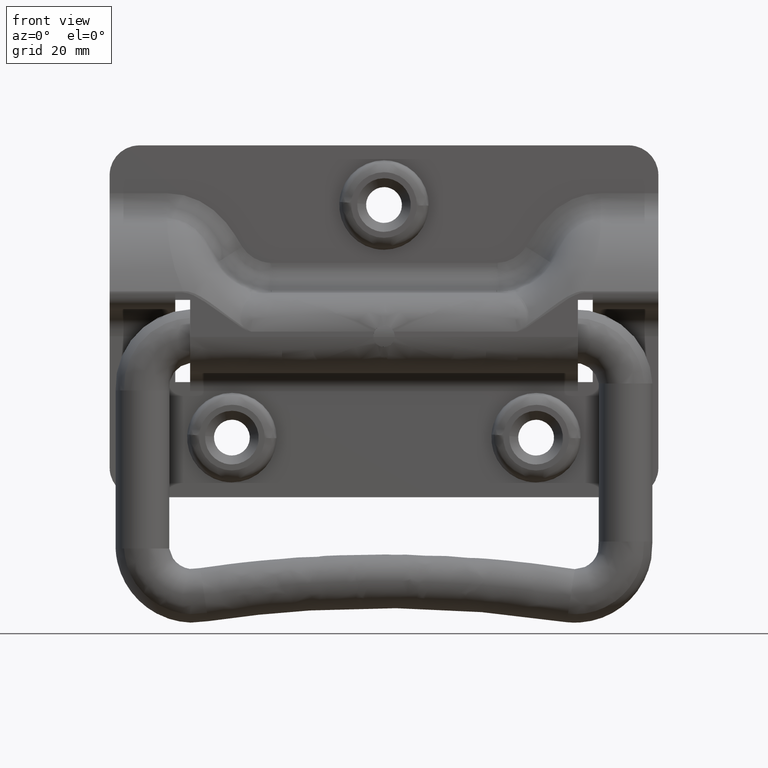
[diagram: clean part render]
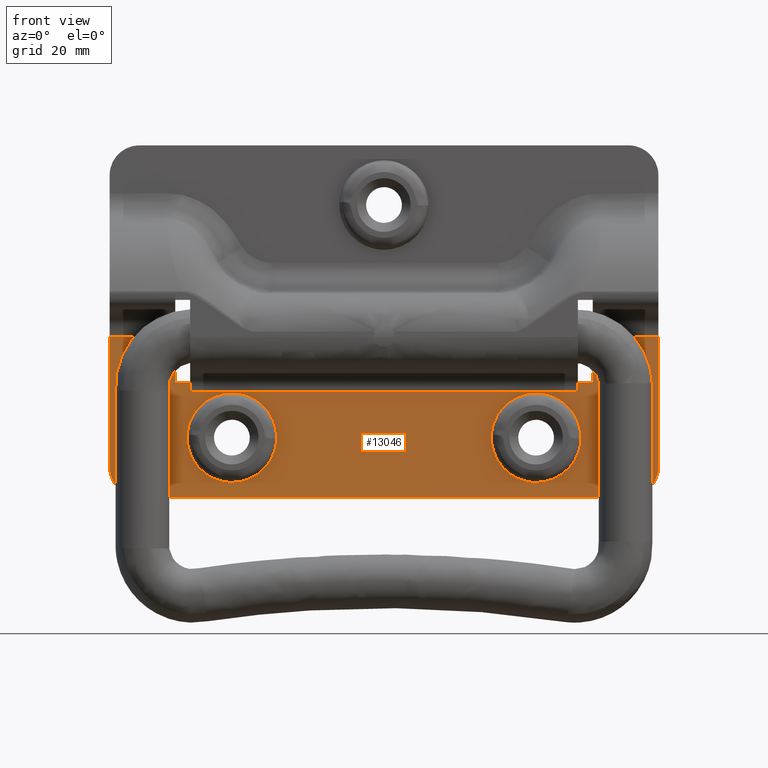
[diagram: same view with one face highlighted and labeled with its STEP entity id]
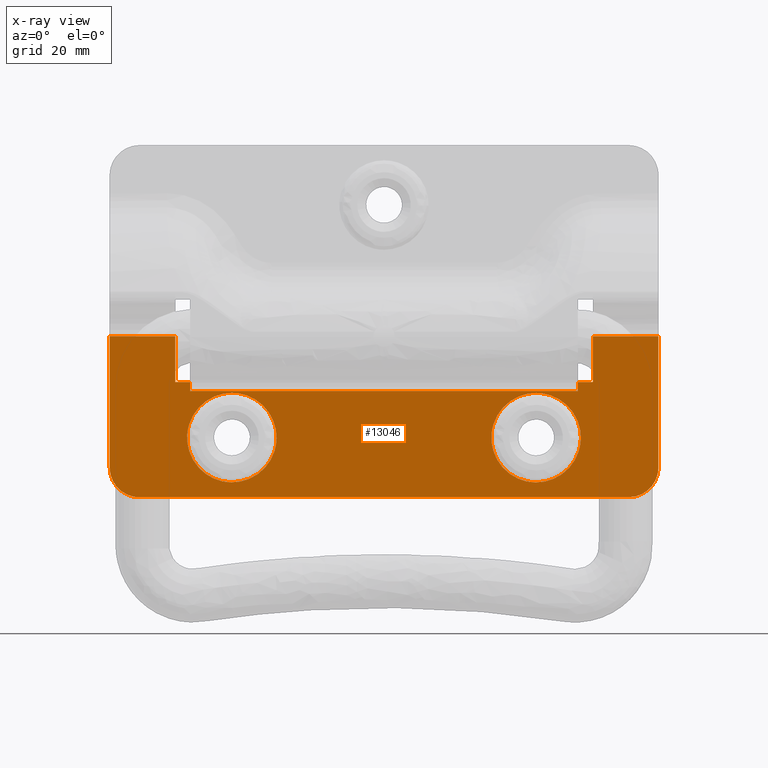
[diagram: x-ray of the same camera — body ghosted, the highlighted face saturated]
A machine part, front view. The second image highlights one B-rep face of the part: STEP entity #13046.
The next image is the same camera in x-ray: the body ghosted, the highlighted face saturated — about 0% of this face is hidden behind the body in this view.
In plain terms, the highlighted face is a freeform B-spline surface patch.
Its self-contained STEP definition (entity closure, byte-faithful):
#5270=CARTESIAN_POINT('',(-32.981742553797730,4.499999999296268,-16.468363613105261));
#5271=VERTEX_POINT('',#5270);
#5285=CARTESIAN_POINT('',(-25.500000000000000,4.500000000000090,-24.491362999999900));
#5286=VERTEX_POINT('',#5285);
#5287=CARTESIAN_POINT('',(-32.981742553797730,4.499999999296268,-16.468363613105261));
#5288=CARTESIAN_POINT('',(-33.0,4.500000000000091,-16.729544630860449));
#5289=CARTESIAN_POINT('',(-33.0,4.500000000000090,-16.991362999999900));
#5290=CARTESIAN_POINT('',(-33.0,4.500000000000090,-24.491362999999907));
#5291=CARTESIAN_POINT('',(-25.500000000000000,4.500000000000090,-24.491362999999900));
#5299=(BOUNDED_CURVE()B_SPLINE_CURVE(2,(#5287,#5288,#5289,#5290,#5291),.UNSPECIFIED.,.F.,.U.)B_SPLINE_CURVE_WITH_KNOTS((3,2,3),(0.737833686531511,0.750000000000000,1.0),.UNSPECIFIED.)CURVE()GEOMETRIC_REPRESENTATION_ITEM()RATIONAL_B_SPLINE_CURVE((0.972879876379402,0.985746277148483,1.0,0.707106781186547,1.0))REPRESENTATION_ITEM(''));
#5300=EDGE_CURVE('',#5271,#5286,#5299,.T.);
#5302=CARTESIAN_POINT('',(-18.000592168472000,4.499999999289219,-17.085608299174250));
#5303=VERTEX_POINT('',#5302);
#5304=CARTESIAN_POINT('',(-25.500000000000000,4.500000000000090,-24.491362999999900));
#5305=CARTESIAN_POINT('',(-18.093660525792345,4.500000000000090,-24.491362999999907));
#5306=CARTESIAN_POINT('',(-18.000592168471993,4.499999999289219,-17.085608299174254));
#5314=(BOUNDED_CURVE()B_SPLINE_CURVE(2,(#5304,#5305,#5306),.UNSPECIFIED.,.F.,.U.)B_SPLINE_CURVE_WITH_KNOTS((3,3),(0.0,0.247784295919420),.UNSPECIFIED.)CURVE()GEOMETRIC_REPRESENTATION_ITEM()RATIONAL_B_SPLINE_CURVE((1.0,0.709702639986944,0.994854295638700))REPRESENTATION_ITEM(''));
#5315=EDGE_CURVE('',#5286,#5303,#5314,.T.);
#5402=CARTESIAN_POINT('',(-25.500000000000000,4.500000000000090,-9.491362999999902));
#5403=VERTEX_POINT('',#5402);
#5404=CARTESIAN_POINT('',(-18.000592168471997,4.499999999289219,-17.085608299174257));
#5405=CARTESIAN_POINT('',(-17.999999999999996,4.500000000000090,-17.038487509988290));
#5406=CARTESIAN_POINT('',(-18.0,4.500000000000090,-16.991362999999900));
#5407=CARTESIAN_POINT('',(-18.000000000000007,4.500000000000090,-9.491362999999902));
#5408=CARTESIAN_POINT('',(-25.500000000000000,4.500000000000090,-9.491362999999902));
#5416=(BOUNDED_CURVE()B_SPLINE_CURVE(2,(#5404,#5405,#5406,#5407,#5408),.UNSPECIFIED.,.F.,.U.)B_SPLINE_CURVE_WITH_KNOTS((3,2,3),(0.247784295919420,0.250000000000000,0.500000000000000),.UNSPECIFIED.)CURVE()GEOMETRIC_REPRESENTATION_ITEM()RATIONAL_B_SPLINE_CURVE((0.994854295638700,0.997404141199604,1.0,0.707106781186547,1.0))REPRESENTATION_ITEM(''));
#5417=EDGE_CURVE('',#5303,#5403,#5416,.T.);
#5419=CARTESIAN_POINT('',(-25.500000000000000,4.500000000000090,-9.491362999999902));
#5420=CARTESIAN_POINT('',(-32.494026354351888,4.500000000000090,-9.491362999999902));
#5421=CARTESIAN_POINT('',(-32.981742553797723,4.499999999296268,-16.468363613105257));
#5429=(BOUNDED_CURVE()B_SPLINE_CURVE(2,(#5419,#5420,#5421),.UNSPECIFIED.,.F.,.U.)B_SPLINE_CURVE_WITH_KNOTS((3,3),(0.500000000000000,0.737833686531510),.UNSPECIFIED.)CURVE()GEOMETRIC_REPRESENTATION_ITEM()RATIONAL_B_SPLINE_CURVE((1.0,0.721360504038065,0.972879876379400))REPRESENTATION_ITEM(''));
#5430=EDGE_CURVE('',#5403,#5271,#5429,.T.);
#5700=CARTESIAN_POINT('',(18.018257446202270,4.499999999296268,-16.477000613105361));
#5701=VERTEX_POINT('',#5700);
#5715=CARTESIAN_POINT('',(25.500000000000000,4.500000000000090,-24.500000000000000));
#5716=VERTEX_POINT('',#5715);
#5717=CARTESIAN_POINT('',(18.018257446202274,4.499999999296268,-16.477000613105364));
#5718=CARTESIAN_POINT('',(17.999999999999996,4.500000000000091,-16.738181630860559));
#5719=CARTESIAN_POINT('',(18.0,4.500000000000090,-17.0));
#5720=CARTESIAN_POINT('',(18.000000000000007,4.500000000000090,-24.499999999999993));
#5721=CARTESIAN_POINT('',(25.500000000000000,4.500000000000090,-24.500000000000000));
#5729=(BOUNDED_CURVE()B_SPLINE_CURVE(2,(#5717,#5718,#5719,#5720,#5721),.UNSPECIFIED.,.F.,.U.)B_SPLINE_CURVE_WITH_KNOTS((3,2,3),(0.737833686531511,0.750000000000000,1.0),.UNSPECIFIED.)CURVE()GEOMETRIC_REPRESENTATION_ITEM()RATIONAL_B_SPLINE_CURVE((0.972879876379402,0.985746277148483,1.0,0.707106781186547,1.0))REPRESENTATION_ITEM(''));
#5730=EDGE_CURVE('',#5701,#5716,#5729,.T.);
#5732=CARTESIAN_POINT('',(32.999407831528003,4.499999999289219,-17.094245299174361));
#5733=VERTEX_POINT('',#5732);
#5734=CARTESIAN_POINT('',(25.500000000000000,4.500000000000090,-24.500000000000000));
#5735=CARTESIAN_POINT('',(32.906339474207648,4.500000000000089,-24.499999999999996));
#5736=CARTESIAN_POINT('',(32.999407831528011,4.499999999289219,-17.094245299174357));
#5744=(BOUNDED_CURVE()B_SPLINE_CURVE(2,(#5734,#5735,#5736),.UNSPECIFIED.,.F.,.U.)B_SPLINE_CURVE_WITH_KNOTS((3,3),(0.0,0.247784295919420),.UNSPECIFIED.)CURVE()GEOMETRIC_REPRESENTATION_ITEM()RATIONAL_B_SPLINE_CURVE((1.0,0.709702639986944,0.994854295638700))REPRESENTATION_ITEM(''));
#5745=EDGE_CURVE('',#5716,#5733,#5744,.T.);
#5832=CARTESIAN_POINT('',(25.500000000000000,4.500000000000090,-9.500000000000002));
#5833=VERTEX_POINT('',#5832);
#5834=CARTESIAN_POINT('',(32.999407831528011,4.499999999289219,-17.094245299174357));
#5835=CARTESIAN_POINT('',(33.000000000000014,4.500000000000090,-17.047124509988389));
#5836=CARTESIAN_POINT('',(33.0,4.500000000000090,-17.0));
#5837=CARTESIAN_POINT('',(33.0,4.500000000000090,-9.500000000000002));
#5838=CARTESIAN_POINT('',(25.500000000000000,4.500000000000090,-9.500000000000002));
#5846=(BOUNDED_CURVE()B_SPLINE_CURVE(2,(#5834,#5835,#5836,#5837,#5838),.UNSPECIFIED.,.F.,.U.)B_SPLINE_CURVE_WITH_KNOTS((3,2,3),(0.247784295919420,0.250000000000000,0.500000000000000),.UNSPECIFIED.)CURVE()GEOMETRIC_REPRESENTATION_ITEM()RATIONAL_B_SPLINE_CURVE((0.994854295638700,0.997404141199603,1.0,0.707106781186547,1.0))REPRESENTATION_ITEM(''));
#5847=EDGE_CURVE('',#5733,#5833,#5846,.T.);
#5849=CARTESIAN_POINT('',(25.500000000000000,4.500000000000090,-9.500000000000002));
#5850=CARTESIAN_POINT('',(18.505973645648119,4.500000000000090,-9.500000000000002));
#5851=CARTESIAN_POINT('',(18.018257446202274,4.499999999296268,-16.477000613105361));
#5859=(BOUNDED_CURVE()B_SPLINE_CURVE(2,(#5849,#5850,#5851),.UNSPECIFIED.,.F.,.U.)B_SPLINE_CURVE_WITH_KNOTS((3,3),(0.500000000000000,0.737833686531510),.UNSPECIFIED.)CURVE()GEOMETRIC_REPRESENTATION_ITEM()RATIONAL_B_SPLINE_CURVE((1.0,0.721360504038065,0.972879876379400))REPRESENTATION_ITEM(''));
#5860=EDGE_CURVE('',#5833,#5701,#5859,.T.);
#6692=CARTESIAN_POINT('',(46.0,4.500000000000090,-22.0));
#6693=VERTEX_POINT('',#6692);
#6699=CARTESIAN_POINT('',(41.0,4.500000000000090,-27.0));
#6700=VERTEX_POINT('',#6699);
#6701=CARTESIAN_POINT('',(41.0,4.500000000000090,-27.0));
#6702=CARTESIAN_POINT('',(46.000000000000007,4.500000000000089,-27.000000000000011));
#6703=CARTESIAN_POINT('',(46.0,4.500000000000090,-22.0));
#6711=(BOUNDED_CURVE()B_SPLINE_CURVE(2,(#6701,#6702,#6703),.UNSPECIFIED.,.F.,.U.)CURVE()GEOMETRIC_REPRESENTATION_ITEM()QUASI_UNIFORM_CURVE()RATIONAL_B_SPLINE_CURVE((1.0,0.707106781186548,1.0))REPRESENTATION_ITEM(''));
#6712=EDGE_CURVE('',#6700,#6693,#6711,.T.);
#6875=CARTESIAN_POINT('',(-41.0,4.500000000000090,-27.0));
#6876=VERTEX_POINT('',#6875);
#6882=CARTESIAN_POINT('',(-46.0,4.500000000000090,-22.0));
#6883=VERTEX_POINT('',#6882);
#6884=CARTESIAN_POINT('',(-46.0,4.500000000000090,-22.0));
#6885=CARTESIAN_POINT('',(-46.000000000000007,4.500000000000089,-27.000000000000011));
#6886=CARTESIAN_POINT('',(-41.0,4.500000000000090,-27.0));
#6894=(BOUNDED_CURVE()B_SPLINE_CURVE(2,(#6884,#6885,#6886),.UNSPECIFIED.,.F.,.U.)CURVE()GEOMETRIC_REPRESENTATION_ITEM()QUASI_UNIFORM_CURVE()RATIONAL_B_SPLINE_CURVE((1.0,0.707106781186548,1.0))REPRESENTATION_ITEM(''));
#6895=EDGE_CURVE('',#6883,#6876,#6894,.T.);
#11611=CARTESIAN_POINT('',(-32.500000000000000,4.500000000000060,-7.700000000000000));
#11612=VERTEX_POINT('',#11611);
#11634=CARTESIAN_POINT('',(-35.0,4.500000000000060,-7.700000000000000));
#11635=VERTEX_POINT('',#11634);
#11641=CARTESIAN_POINT('',(-32.500000000000000,4.500000000000060,-7.700000000000000));
#11642=CARTESIAN_POINT('',(-35.0,4.500000000000060,-7.700000000000000));
#11643=QUASI_UNIFORM_CURVE('',1,(#11641,#11642),.UNSPECIFIED.,.F.,.U.);
#11644=EDGE_CURVE('',#11612,#11635,#11643,.T.);
#11695=CARTESIAN_POINT('',(-35.0,4.500000000000000,0.0));
#11696=VERTEX_POINT('',#11695);
#11710=CARTESIAN_POINT('',(-35.0,4.500000000000060,-7.700000000000000));
#11711=CARTESIAN_POINT('',(-35.0,4.500000000000000,0.0));
#11712=QUASI_UNIFORM_CURVE('',1,(#11710,#11711),.UNSPECIFIED.,.F.,.U.);
#11713=EDGE_CURVE('',#11635,#11696,#11712,.T.);
#11766=CARTESIAN_POINT('',(35.0,4.500000000000060,-7.700000000000000));
#11767=VERTEX_POINT('',#11766);
#11789=CARTESIAN_POINT('',(32.500000000000000,4.500000000000060,-7.700000000000000));
#11790=VERTEX_POINT('',#11789);
#11796=CARTESIAN_POINT('',(35.0,4.500000000000060,-7.700000000000000));
#11797=CARTESIAN_POINT('',(32.500000000000000,4.500000000000060,-7.700000000000000));
#11798=QUASI_UNIFORM_CURVE('',1,(#11796,#11797),.UNSPECIFIED.,.F.,.U.);
#11799=EDGE_CURVE('',#11767,#11790,#11798,.T.);
#11886=CARTESIAN_POINT('',(35.0,4.500000000000000,0.0));
#11887=VERTEX_POINT('',#11886);
#11888=CARTESIAN_POINT('',(35.0,4.500000000000000,0.0));
#11889=CARTESIAN_POINT('',(35.0,4.500000000000060,-7.700000000000000));
#11890=QUASI_UNIFORM_CURVE('',1,(#11888,#11889),.UNSPECIFIED.,.F.,.U.);
#11891=EDGE_CURVE('',#11887,#11767,#11890,.T.);
#12036=CARTESIAN_POINT('',(-32.500000000000000,4.500000000000090,-9.199999999999902));
#12037=VERTEX_POINT('',#12036);
#12053=CARTESIAN_POINT('',(32.500000000000000,4.500000000000090,-9.199999999999902));
#12054=VERTEX_POINT('',#12053);
#12055=CARTESIAN_POINT('',(32.500000000000000,4.500000000000090,-9.199999999999902));
#12056=CARTESIAN_POINT('',(-32.500000000000000,4.500000000000090,-9.199999999999902));
#12057=QUASI_UNIFORM_CURVE('',1,(#12055,#12056),.UNSPECIFIED.,.F.,.U.);
#12058=EDGE_CURVE('',#12054,#12037,#12057,.T.);
#12116=CARTESIAN_POINT('',(41.0,4.500000000000090,-27.0));
#12117=CARTESIAN_POINT('',(-41.0,4.500000000000090,-27.0));
#12118=QUASI_UNIFORM_CURVE('',1,(#12116,#12117),.UNSPECIFIED.,.F.,.U.);
#12119=EDGE_CURVE('',#6700,#6876,#12118,.T.);
#12228=CARTESIAN_POINT('',(-32.500000000000000,4.500000000000090,-9.199999999999902));
#12229=CARTESIAN_POINT('',(-32.500000000000000,4.500000000000060,-7.700000000000000));
#12230=QUASI_UNIFORM_CURVE('',1,(#12228,#12229),.UNSPECIFIED.,.F.,.U.);
#12231=EDGE_CURVE('',#12037,#11612,#12230,.T.);
#12296=CARTESIAN_POINT('',(32.500000000000000,4.500000000000090,-9.199999999999902));
#12297=CARTESIAN_POINT('',(32.500000000000000,4.500000000000060,-7.700000000000000));
#12298=QUASI_UNIFORM_CURVE('',1,(#12296,#12297),.UNSPECIFIED.,.F.,.U.);
#12299=EDGE_CURVE('',#12054,#11790,#12298,.T.);
#12366=CARTESIAN_POINT('',(46.0,4.500000000000000,0.0));
#12367=VERTEX_POINT('',#12366);
#12381=CARTESIAN_POINT('',(46.0,4.500000000000090,-22.0));
#12382=CARTESIAN_POINT('',(46.0,4.500000000000000,0.0));
#12383=QUASI_UNIFORM_CURVE('',1,(#12381,#12382),.UNSPECIFIED.,.F.,.U.);
#12384=EDGE_CURVE('',#6693,#12367,#12383,.T.);
#12433=CARTESIAN_POINT('',(-46.0,4.500000000000000,0.0));
#12434=VERTEX_POINT('',#12433);
#12435=CARTESIAN_POINT('',(-46.0,4.500000000000090,-22.0));
#12436=CARTESIAN_POINT('',(-46.0,4.500000000000000,0.0));
#12437=QUASI_UNIFORM_CURVE('',1,(#12435,#12436),.UNSPECIFIED.,.F.,.U.);
#12438=EDGE_CURVE('',#6883,#12434,#12437,.T.);
#12645=CARTESIAN_POINT('',(46.0,4.500000000000000,0.0));
#12646=CARTESIAN_POINT('',(35.0,4.500000000000000,0.0));
#12647=QUASI_UNIFORM_CURVE('',1,(#12645,#12646),.UNSPECIFIED.,.F.,.U.);
#12648=EDGE_CURVE('',#12367,#11887,#12647,.T.);
#12750=CARTESIAN_POINT('',(-35.0,4.500000000000000,0.0));
#12751=CARTESIAN_POINT('',(-46.0,4.500000000000000,0.0));
#12752=QUASI_UNIFORM_CURVE('',1,(#12750,#12751),.UNSPECIFIED.,.F.,.U.);
#12753=EDGE_CURVE('',#11696,#12434,#12752,.T.);
#13013=CARTESIAN_POINT('',(-50.595399821686172,4.500000000000090,1.348649947668761));
#13014=CARTESIAN_POINT('',(-50.595399821686172,4.500000000000090,-28.348650671865201));
#13015=CARTESIAN_POINT('',(50.595402289318457,4.500000000000090,1.348649947668761));
#13016=CARTESIAN_POINT('',(50.595402289318457,4.500000000000090,-28.348650671865201));
#13017=B_SPLINE_SURFACE_WITH_KNOTS('',1,1,((#13013,#13015),(#13014,#13016)),.UNSPECIFIED.,.F.,.F.,.U.,(2,2),(2,2),(0.0,29.697300619533959),(0.0,101.190802111004600),.UNSPECIFIED.);
#13018=ORIENTED_EDGE('',*,*,#12438,.F.);
#13019=ORIENTED_EDGE('',*,*,#6895,.T.);
#13020=ORIENTED_EDGE('',*,*,#12119,.F.);
#13021=ORIENTED_EDGE('',*,*,#6712,.T.);
#13022=ORIENTED_EDGE('',*,*,#12384,.T.);
#13023=ORIENTED_EDGE('',*,*,#12648,.T.);
#13024=ORIENTED_EDGE('',*,*,#11891,.T.);
#13025=ORIENTED_EDGE('',*,*,#11799,.T.);
#13026=ORIENTED_EDGE('',*,*,#12299,.F.);
#13027=ORIENTED_EDGE('',*,*,#12058,.T.);
#13028=ORIENTED_EDGE('',*,*,#12231,.T.);
#13029=ORIENTED_EDGE('',*,*,#11644,.T.);
#13030=ORIENTED_EDGE('',*,*,#11713,.T.);
#13031=ORIENTED_EDGE('',*,*,#12753,.T.);
#13032=EDGE_LOOP('',(#13018,#13019,#13020,#13021,#13022,#13023,#13024,#13025,#13026,#13027,#13028,#13029,#13030,#13031));
#13033=FACE_OUTER_BOUND('',#13032,.T.);
#13034=ORIENTED_EDGE('',*,*,#5745,.F.);
#13035=ORIENTED_EDGE('',*,*,#5730,.F.);
#13036=ORIENTED_EDGE('',*,*,#5860,.F.);
#13037=ORIENTED_EDGE('',*,*,#5847,.F.);
#13038=EDGE_LOOP('',(#13034,#13035,#13036,#13037));
#13039=FACE_BOUND('',#13038,.T.);
#13040=ORIENTED_EDGE('',*,*,#5315,.F.);
#13041=ORIENTED_EDGE('',*,*,#5300,.F.);
#13042=ORIENTED_EDGE('',*,*,#5430,.F.);
#13043=ORIENTED_EDGE('',*,*,#5417,.F.);
#13044=EDGE_LOOP('',(#13040,#13041,#13042,#13043));
#13045=FACE_BOUND('',#13044,.T.);
#13046=ADVANCED_FACE('',(#13033,#13039,#13045),#13017,.T.);